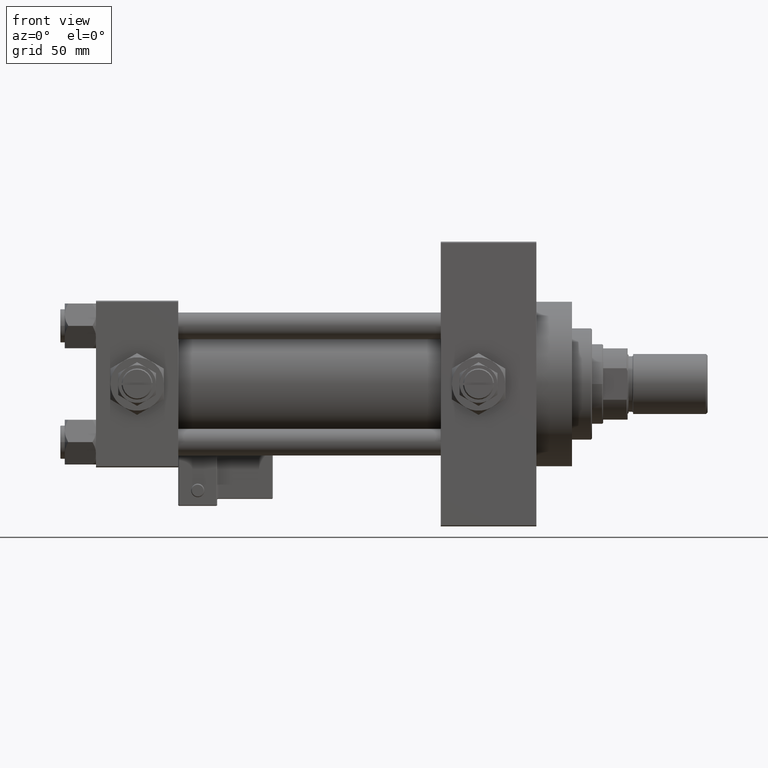
[diagram: clean part render]
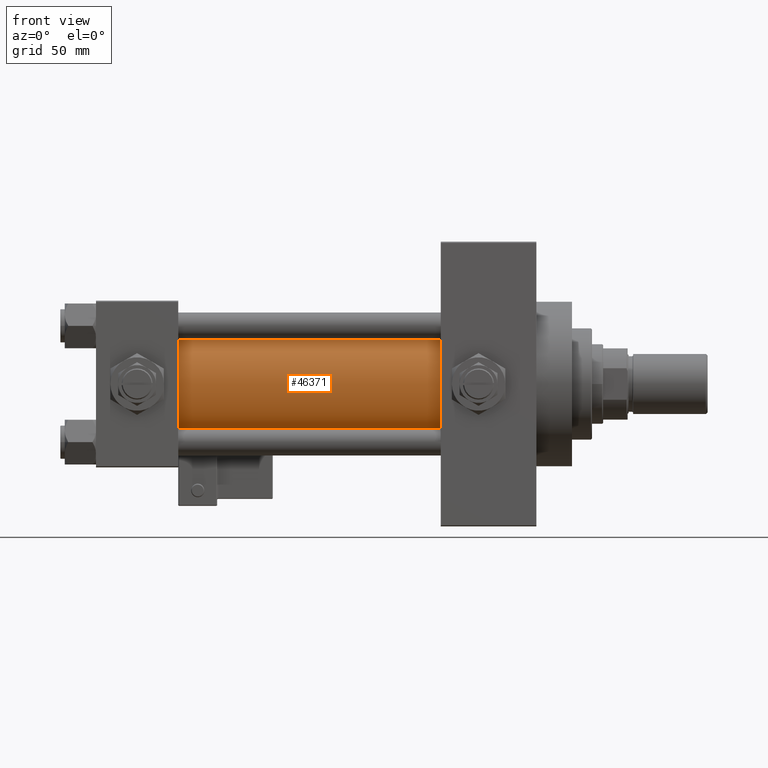
[diagram: same view with one face highlighted and labeled with its STEP entity id]
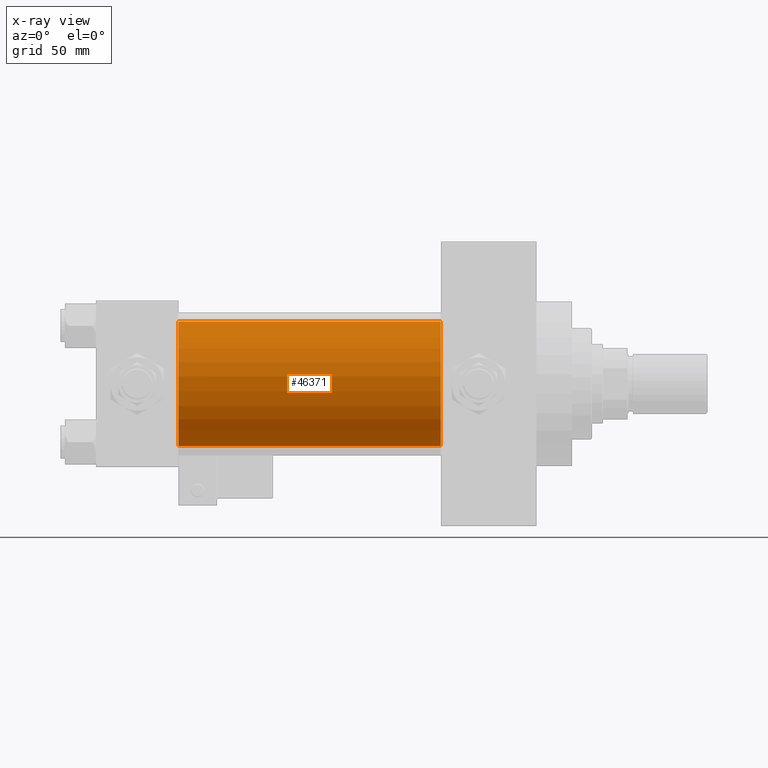
[diagram: x-ray of the same camera — body ghosted, the highlighted face saturated]
A machine part, front view. The second image highlights one B-rep face of the part: STEP entity #46371.
The next image is the same camera in x-ray: the body ghosted, the highlighted face saturated — about 0% of this face is hidden behind the body in this view.
In plain terms, the highlighted cylindrical surface (partial cylindrical patch) has radius 28 mm, axis along (-1, -0, -0).
Its self-contained STEP definition (entity closure, byte-faithful):
#857 = EDGE_CURVE ( 'NONE', #5899, #9767, #34610, .T. ) ;
#888 = DIRECTION ( 'NONE',  ( -1.000000000000000000, -0.000000000000000000, -0.000000000000000000 ) ) ;
#1940 = DIRECTION ( 'NONE',  ( 0.000000000000000000, 0.000000000000000000, 1.000000000000000000 ) ) ;
#2985 = ORIENTED_EDGE ( 'NONE', *, *, #17987, .F. ) ;
#3031 = VERTEX_POINT ( 'NONE', #17287 ) ;
#4885 = CARTESIAN_POINT ( 'NONE',  ( 155.0000000000000000, 8.269258236473784371E-16, -28.00000000000000000 ) ) ;
#5899 = VERTEX_POINT ( 'NONE', #49602 ) ;
#6046 = DIRECTION ( 'NONE',  ( 1.000000000000000000, -0.000000000000000000, 0.000000000000000000 ) ) ;
#6464 = AXIS2_PLACEMENT_3D ( 'NONE', #29787, #26093, #1940 ) ;
#7509 = ORIENTED_EDGE ( 'NONE', *, *, #27767, .F. ) ;
#9693 = CARTESIAN_POINT ( 'NONE',  ( 155.0000000000000000, -2.602085213965210642E-15, 28.00000000000000000 ) ) ;
#9767 = VERTEX_POINT ( 'NONE', #14517 ) ;
#11993 = AXIS2_PLACEMENT_3D ( 'NONE', #37318, #6046, #22077 ) ;
#12634 = EDGE_CURVE ( 'NONE', #3031, #5899, #42262, .T. ) ;
#12653 = VECTOR ( 'NONE', #888, 1000.000000000000000 ) ;
#13223 = ORIENTED_EDGE ( 'NONE', *, *, #12634, .T. ) ;
#13877 = AXIS2_PLACEMENT_3D ( 'NONE', #15487, #19925, #27805 ) ;
#14517 = CARTESIAN_POINT ( 'NONE',  ( 37.00000000000000711, 8.269258236473784371E-16, -28.00000000000000000 ) ) ;
#15487 = CARTESIAN_POINT ( 'NONE',  ( 155.0000000000000000, -2.602085213965210642E-15, 0.000000000000000000 ) ) ;
#17287 = CARTESIAN_POINT ( 'NONE',  ( 155.0000000000000000, -2.602085213965210642E-15, 28.00000000000000000 ) ) ;
#17987 = EDGE_CURVE ( 'NONE', #21073, #9767, #37637, .T. ) ;
#19925 = DIRECTION ( 'NONE',  ( 1.000000000000000000, 0.000000000000000000, 0.000000000000000000 ) ) ;
#21073 = VERTEX_POINT ( 'NONE', #4885 ) ;
#22077 = DIRECTION ( 'NONE',  ( 0.000000000000000000, 0.000000000000000000, 1.000000000000000000 ) ) ;
#25065 = CYLINDRICAL_SURFACE ( 'NONE', #6464, 28.00000000000000000 ) ;
#26093 = DIRECTION ( 'NONE',  ( -1.000000000000000000, -0.000000000000000000, -0.000000000000000000 ) ) ;
#26793 = VECTOR ( 'NONE', #34106, 1000.000000000000000 ) ;
#27767 = EDGE_CURVE ( 'NONE', #3031, #21073, #45730, .T. ) ;
#27805 = DIRECTION ( 'NONE',  ( 0.000000000000000000, 0.000000000000000000, -1.000000000000000000 ) ) ;
#29787 = CARTESIAN_POINT ( 'NONE',  ( 155.0000000000000000, -2.602085213965210642E-15, 0.000000000000000000 ) ) ;
#30041 = FACE_OUTER_BOUND ( 'NONE', #47186, .T. ) ;
#33615 = ORIENTED_EDGE ( 'NONE', *, *, #857, .T. ) ;
#34106 = DIRECTION ( 'NONE',  ( -1.000000000000000000, -0.000000000000000000, -0.000000000000000000 ) ) ;
#34610 = CIRCLE ( 'NONE', #11993, 28.00000000000000000 ) ;
#37318 = CARTESIAN_POINT ( 'NONE',  ( 37.00000000000000711, -2.602085213965210642E-15, 0.000000000000000000 ) ) ;
#37637 = LINE ( 'NONE', #45012, #12653 ) ;
#42262 = LINE ( 'NONE', #9693, #26793 ) ;
#45012 = CARTESIAN_POINT ( 'NONE',  ( 155.0000000000000000, 8.269258236473784371E-16, -28.00000000000000000 ) ) ;
#45730 = CIRCLE ( 'NONE', #13877, 28.00000000000000000 ) ;
#46371 = ADVANCED_FACE ( 'NONE', ( #30041 ), #25065, .T. ) ;
#47186 = EDGE_LOOP ( 'NONE', ( #2985, #7509, #13223, #33615 ) ) ;
#49602 = CARTESIAN_POINT ( 'NONE',  ( 37.00000000000000711, -2.602085213965210642E-15, 28.00000000000000000 ) ) ;